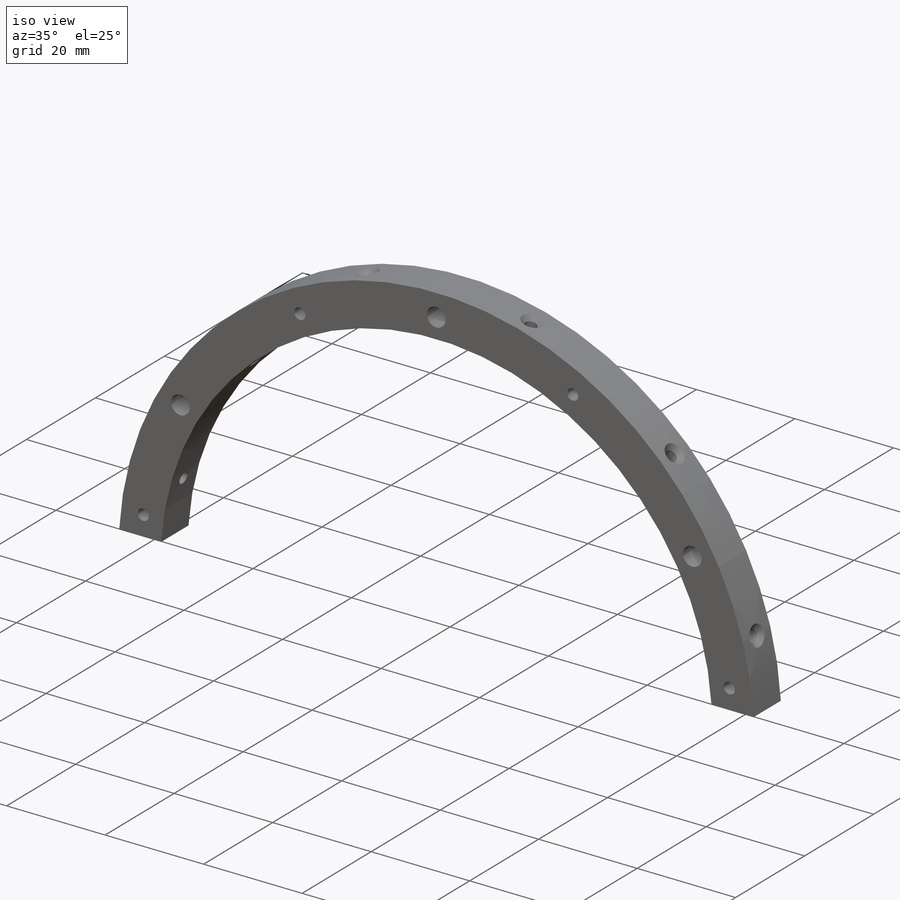
[diagram: iso view]
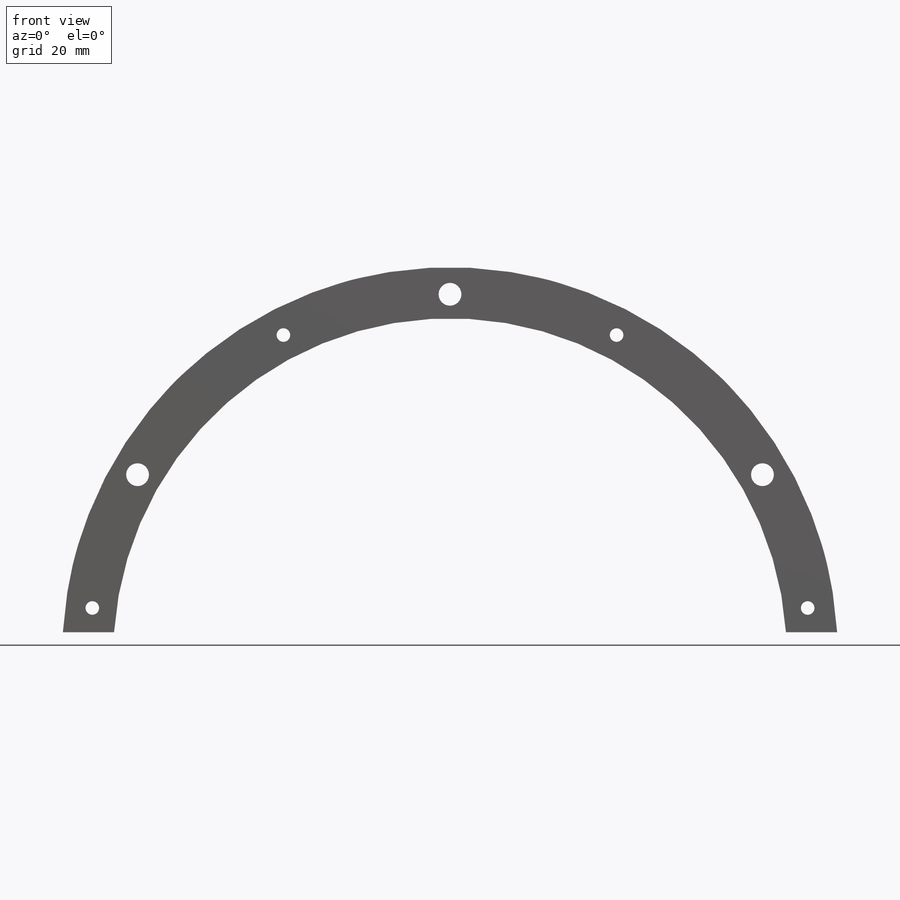
[diagram: front view]
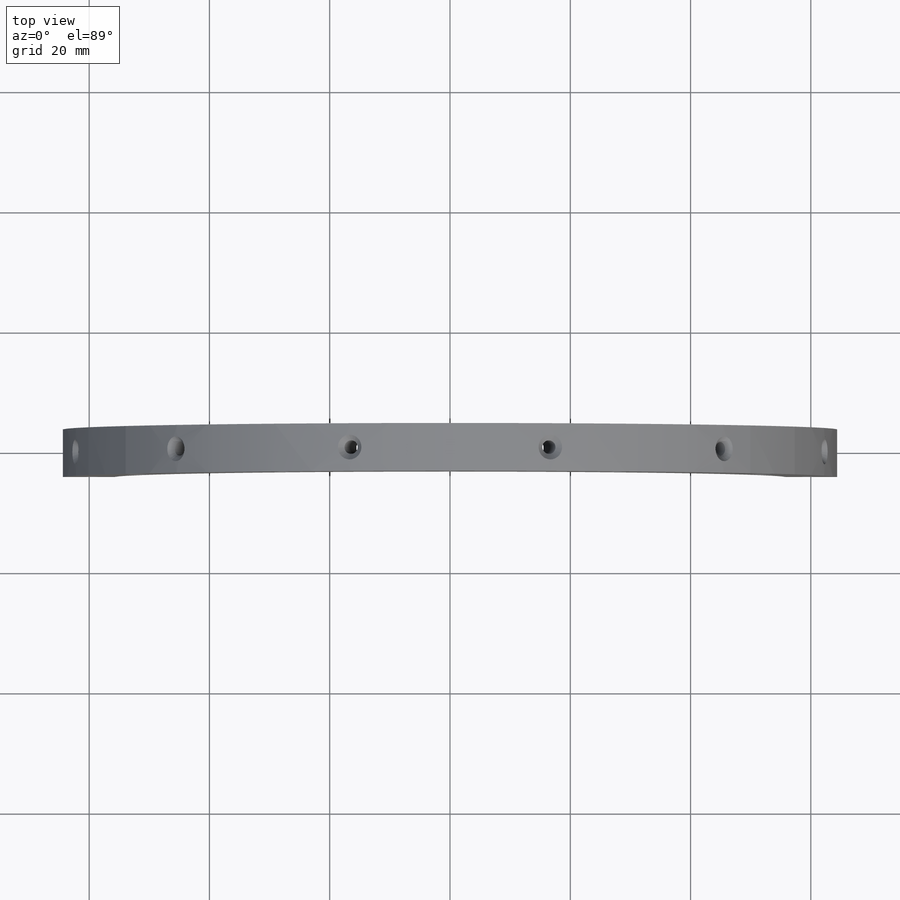
[diagram: top view]
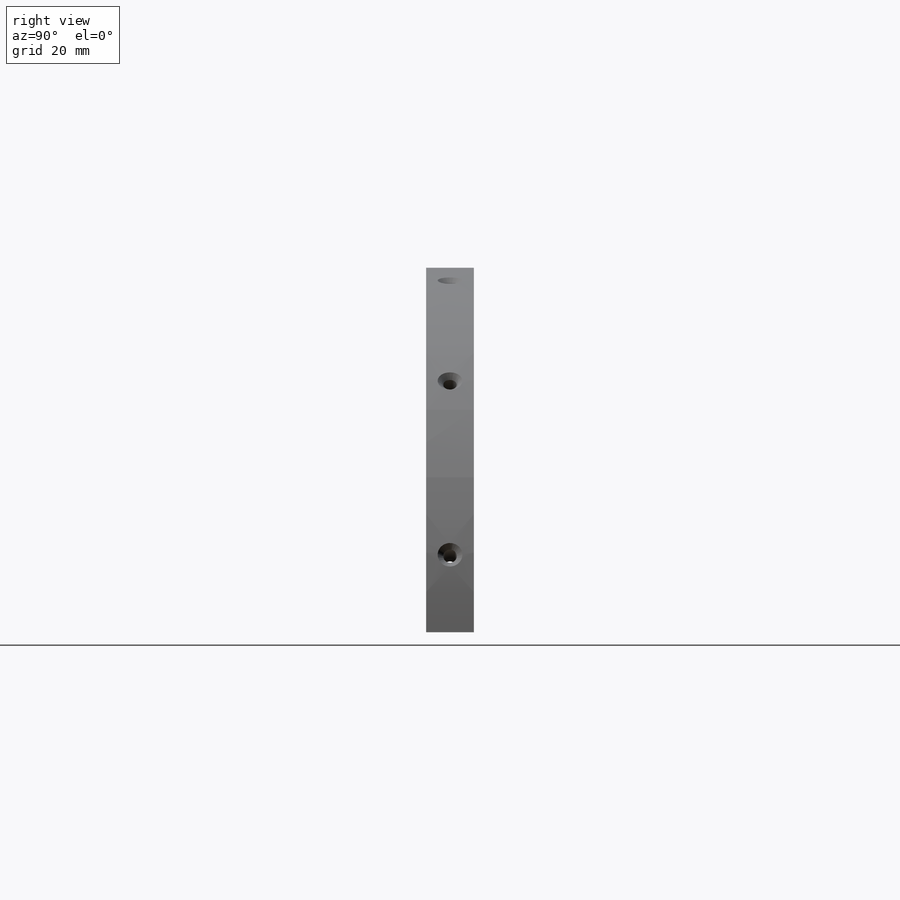
[diagram: right view]
SOLIDWORKS PART (.sldprt)
format: sldprt  version: not decoded by parser v0  size: 368,128 bytes
history: native  units: mm
features: sketch x8, hole x3, thread x3, pattern_circular x3, material x1, extrude x1 (+11 scaffold rows collapsed)
feature tree (30):
  scaffold x11  (default folders/planes/origin — collapsed)
  material  "6061-T6 (SS)"
  sketch  "Sketch1"  dims[D2=64.5mm D3=56.0mm D1=3.8mm]
  extrude  "Boss-Extrude1"  Depth=7.9375mm
  sketch  "Sketch2"  dims[c1.D1=~95.064646mm c2.D1=15.0deg]
  hole  "#4-40 Tapped Hole2"  Diameter=2.2606mm Depth=8.87mm
  sketch  "3DSketch1"
  sketch  "Sketch3"  dims[hole-wizard template sketch: 39 standard entries collapsed; hole parameters kept: c13.Tap Drill Dia.=2.2606mm c13.Tap Drill Depth=8.87mm c13.Near C'Sink Dia.=4.1148mm c13.D4=~33.297463mm c13.Near C'Sink Angle=90.0deg c14.D5=~14.816244mm c14.Drill Angle=118.0deg]
  thread  "Hole Thread1"  Diameter=5.69mm  [1 undecoded]
  pattern_circular  "CirPattern1"  Count=6 Angle=30deg
  hole  "#4-40 Tapped Hole3"  Diameter=2.2606mm Depth=7.9375mm
  sketch  "Sketch5"  dims[c1.D1=~33.833851mm c2.D1=7.5deg c2.D2=60.0mm]
  sketch  "Sketch4"  dims[hole-wizard template sketch: 54 standard entries collapsed; hole parameters kept: c17.Thru Tap Drill Dia.=2.2606mm c17.Thru Tap Drill Depth=7.9375mm c17.Near C'Sink Dia.=4.1148mm c17.D4=~3.666174mm c17.Near C'Sink Angle=90.0deg]
  thread  "Hole Thread2"  Diameter=2.8448mm  [1 undecoded]
  pattern_circular  "CirPattern2"  Count=4 Angle=55deg
  hole  "#10-24 Tapped Hole1"  Diameter=3.7973mm Depth=7.9375mm
  sketch  "Sketch7"  dims[c1.D1=~36.366087mm c2.D1=30.0deg c2.D2=60.0mm]
  sketch  "Sketch6"  dims[hole-wizard template sketch: 54 standard entries collapsed; hole parameters kept: c17.Thru Tap Drill Dia.=3.7973mm c17.Thru Tap Drill Depth=7.9375mm c17.Near C'Sink Dia.=6.096mm c17.D4=~3.666174mm c17.Near C'Sink Angle=90.0deg]
  thread  "Hole Thread3"  Diameter=4.826mm  [1 undecoded]
  pattern_circular  "CirPattern3"  Count=3 Angle=60deg
decode coverage: 17 of 18 modeling features carry decoded parameters
note: ~ marks probable driven/reference dimensions
note: 3 parameter values undecoded
note: suppression state not decoded; provenance and decode notes live in map.json
